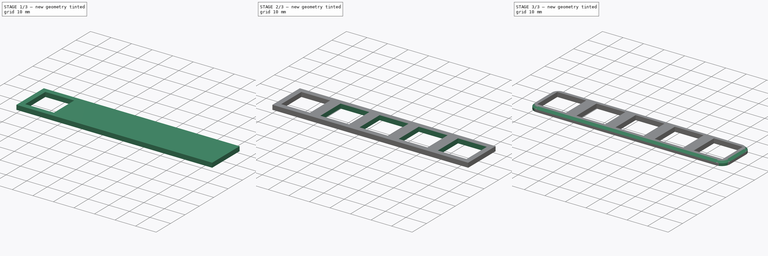
[diagram: build sequence overview — one tinted view per stage of 3, left to right]
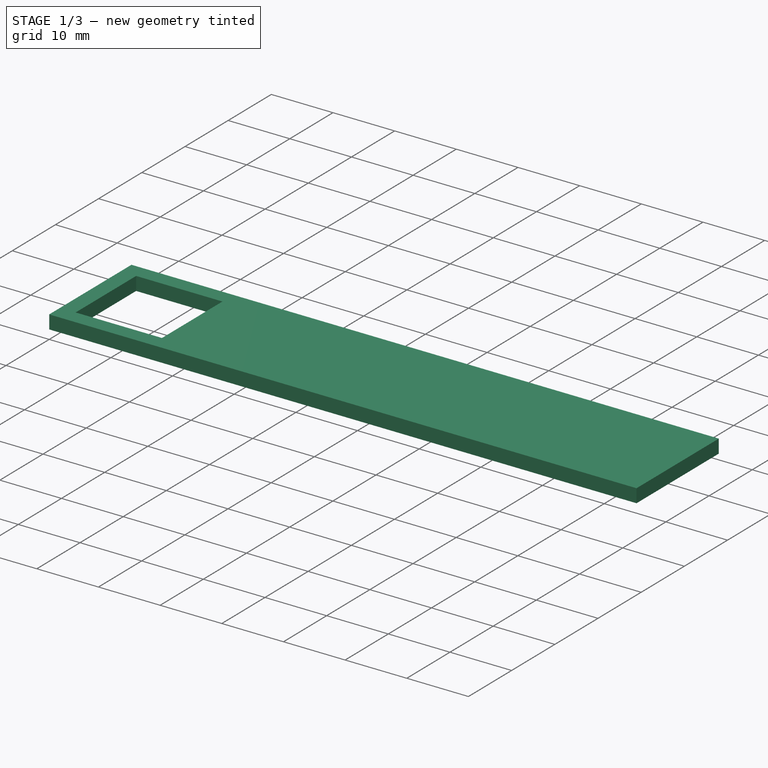
[diagram: stage 1 of 3 — iso view after this stage's code; geometry added in this stage tinted green]
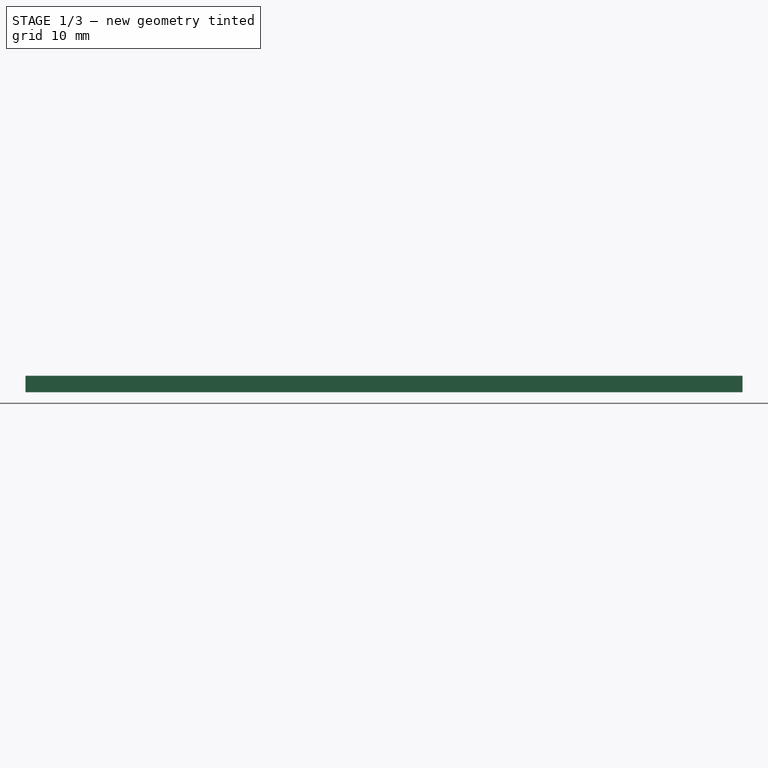
[diagram: stage 1 of 3 — front view after this stage's code; geometry added in this stage tinted green]
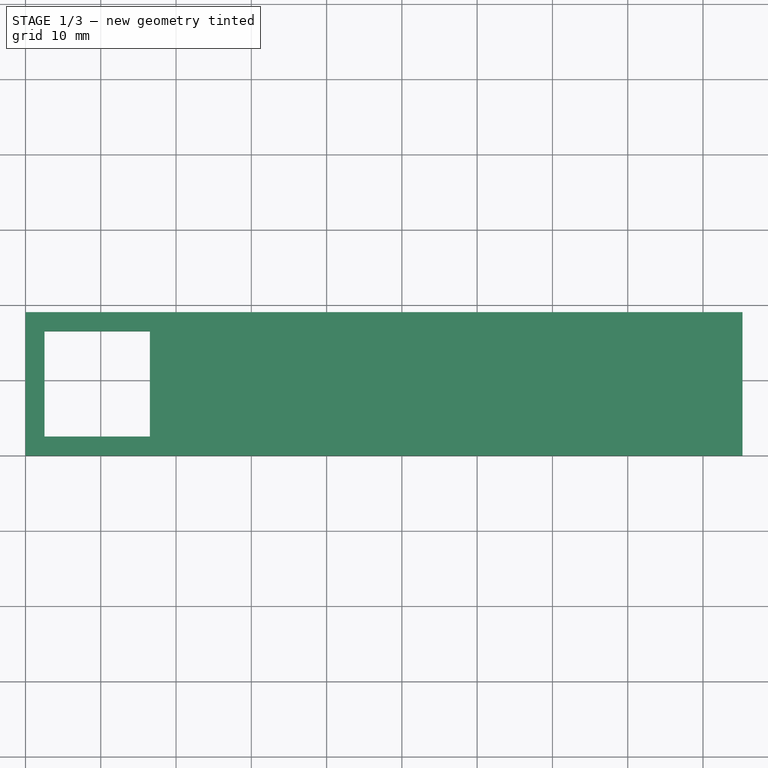
[diagram: stage 1 of 3 — top view after this stage's code; geometry added in this stage tinted green]
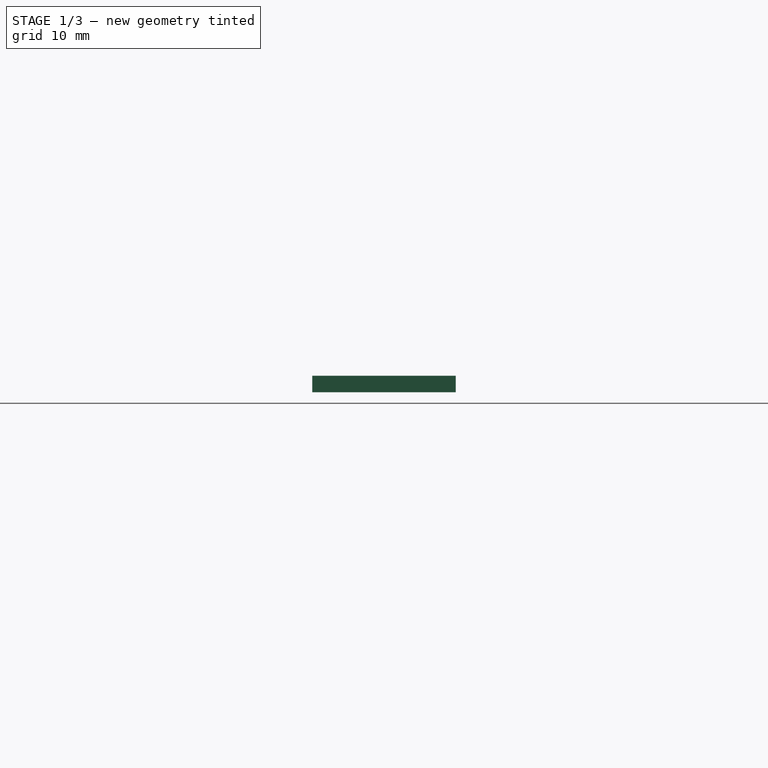
[diagram: stage 1 of 3 — right view after this stage's code; geometry added in this stage tinted green]
FCSTD DOCUMENT  (FreeCAD 0.21R33771 (Git))
Label: LowProPlateXL
License: All rights reserved
LicenseURL: http://en.wikipedia.org/wiki/All_rights_reserved
objects: Sketcher::SketchObject×2, PartDesign::Pocket×2, Part::Part2DObjectPython×2, PartDesign::FeaturePython×2, PartDesign::AdditiveBox×1, PartDesign::Fillet×1, PartDesign::Chamfer×1, PartDesign::Body×1
note: 17 computed .brp shape members not serialized (recipe doc carries the construction recipe); baked Part::Feature solids carry a one-line shape summary decoded from their .brp

FEATURE [PartDesign::AdditiveBox] Box
  AttacherType = Attacher::AttachEngine3D
  Height = 2.2
  Length = 95.25
  Width = 19.05
  expr: Length = 19.05 * 5
FEATURE [Sketcher::SketchObject] Sketch  label="SwitchHoleSketch"
  ExternalGeometry = -> [Box]
  FullyConstrained = true
  MapMode = 5
  Placement = pos=(0,0,2.2) rot=(0,0,1;0rad)
  Support = -> [Box]
  sketch-geometry (7):
    g0: LineSegment StartX=2.525 StartY=16.525 StartZ=0 EndX=16.525 EndY=16.525 EndZ=0
    g1: LineSegment StartX=16.525 StartY=16.525 StartZ=0 EndX=16.525 EndY=2.525 EndZ=0
    g2: LineSegment StartX=16.525 StartY=2.525 StartZ=0 EndX=2.525 EndY=2.525 EndZ=0
    g3: LineSegment StartX=2.525 StartY=2.525 StartZ=0 EndX=2.525 EndY=16.525 EndZ=0
    g4: GeomPoint X=9.525 Y=9.525 Z=0
    g5: LineSegment StartX=9.525 StartY=9.525 StartZ=0 EndX=0 EndY=19.05 EndZ=0
    g6: LineSegment StartX=0 StartY=0 StartZ=0 EndX=9.525 EndY=9.525 EndZ=0
  constraints (17):
    c: Coincident(g0,g1)
    c: Coincident(g1,g2)
    c: Coincident(g2,g3)
    c: Coincident(g3,g0)
    c: Horizontal(g0)
    c: Horizontal(g2)
    c: Vertical(g1)
    c: Vertical(g3)
    c: DistanceX(g0,g0) = 14
    c: Equal(g0,g1)
    c: Symmetric(g2,g0,g4)
    c: Coincident(g5,g4)
    c: Coincident(g5,g-3)
    c: Coincident(g6,g-1)
    c: Coincident(g6,g4)
    c: Equal(g5,g6)
    c: DistanceX(g6,g4) = 9.525
FEATURE [PartDesign::Pocket] Pocket  label="SwitchPocket"
  BaseFeature = -> Box
  Direction = (0,0,-1)
  Length = 5
  Length2 = 5
  Profile = -> Sketch
  ReferenceAxis = -> Sketch [N_Axis]
  Type = 1
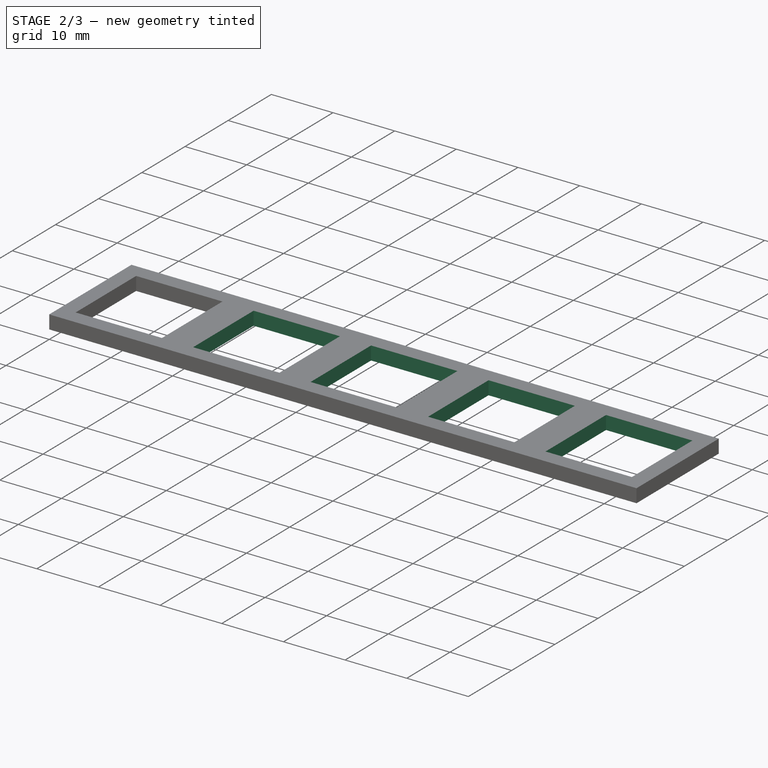
[diagram: stage 2 of 3 — iso view after this stage's code; geometry added in this stage tinted green]
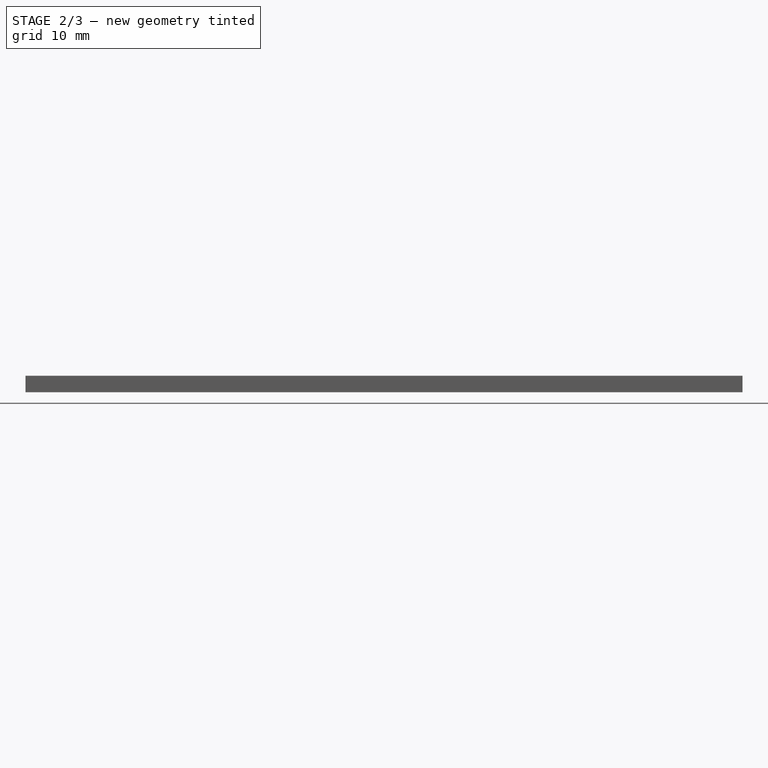
[diagram: stage 2 of 3 — front view after this stage's code; geometry added in this stage tinted green]
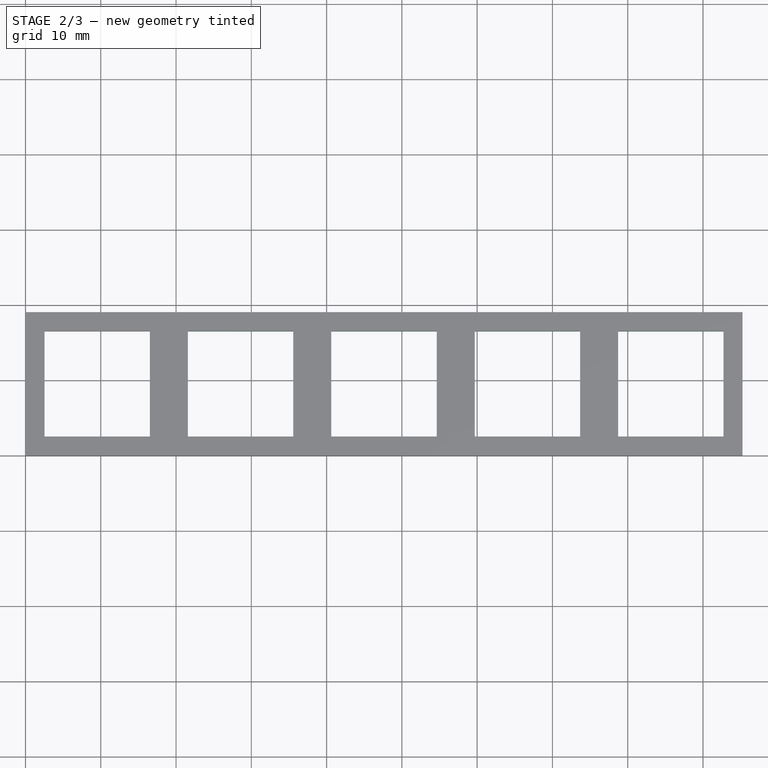
[diagram: stage 2 of 3 — top view after this stage's code; geometry added in this stage tinted green]
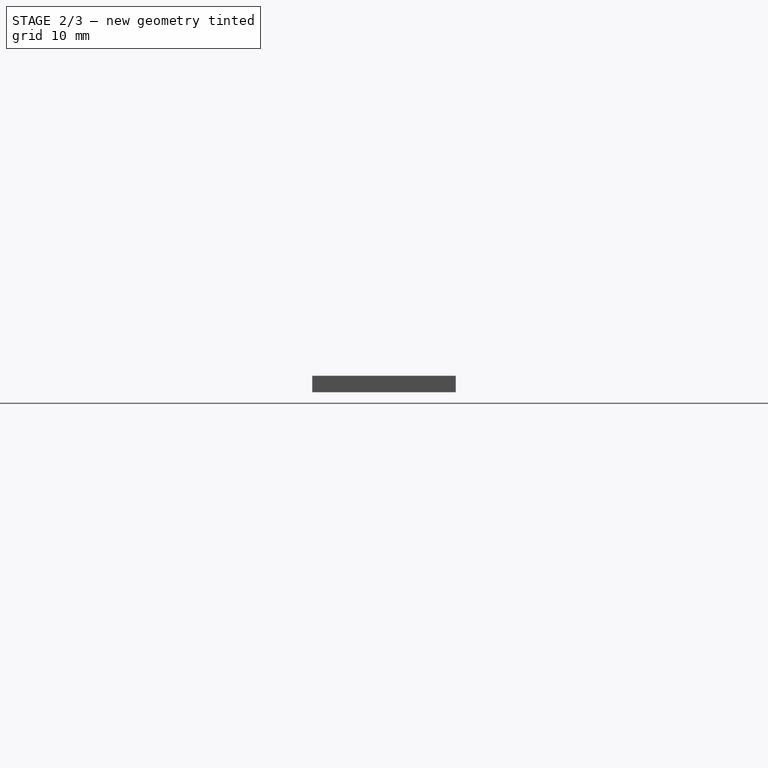
[diagram: stage 2 of 3 — right view after this stage's code; geometry added in this stage tinted green]
FEATURE [Part::Part2DObjectPython] LinearArray  # Draft 2D object (typed FeaturePython)
  Alignment = 0
  AttacherType = Attacher::AttachEngine3D
  CellStart = A1
  Count = 5
  Dir = (1,0,0)
  DirIsDriven = true
  DistributionLaw = 0
  DrivenProperty = 1
  EndInclusive = true
  ExposePlacement = false
  GeneratorMode = 1
  Link = -> Pocket
  LinkSubelement = Edge7
  MarkerShape = 1
  MarkerSize = 0
  NumElements = 5
  OrientMode = 1
  Point = (0,0,2.2)
  PointIsDriven = true
  Reverse = false
  SpanEnd = 95.25
  SpanStart = 0
  Step = 19.05
  SubLink = -> Pocket [Edge7]
  Type = lattice2LinearArray.LinearArray
  VSGVersion = 1
  Values = 0.0 | 19.05 | 38.1 | 57.150000000000006 | 76.2
  ValuesSource = 2
  isLattice = 1
FEATURE [PartDesign::FeaturePython] LatticePattern  # WARN: FeaturePython — macro-defined, semantics opaque (R4)
  BaseFeature = -> Pocket
  FeaturesToCopy = -> [Pocket]
  IgnoreUnsupported = false
  PlacementsTo = -> LinearArray
  Referencing = 1
  Selfintersections = false
  SignOverride = 0
  SkipFirstInBody = false
FEATURE [Sketcher::SketchObject] Sketch001  label="ResistorPocketSketch"
  ExternalGeometry = -> [LatticePattern]
  FullyConstrained = true
  MapMode = 5
  Placement = pos=(0,0,0) rot=(1,0,0;3.14159rad)
  Support = -> [LatticePattern]
  sketch-geometry (5):
    g0: LineSegment StartX=16.525 StartY=-7.025 StartZ=0 EndX=19.05 EndY=-7.025 EndZ=0
    g1: LineSegment StartX=19.05 StartY=-7.025 StartZ=0 EndX=19.05 EndY=-12.025 EndZ=0
    g2: LineSegment StartX=19.05 StartY=-12.025 StartZ=0 EndX=16.525 EndY=-12.025 EndZ=0
    g3: LineSegment StartX=16.525 StartY=-12.025 StartZ=0 EndX=16.525 EndY=-7.025 EndZ=0
    g4: GeomPoint X=19.05 Y=-9.525 Z=0
  constraints (12):
    c: Coincident(g0,g1)
    c: Coincident(g1,g2)
    c: Coincident(g2,g3)
    c: Coincident(g3,g0)
    c: Horizontal(g0)
    c: Horizontal(g2)
    c: Vertical(g1)
    c: Vertical(g3)
    c: DistanceY(g3,g3) = 5
    c: Symmetric(g0,g1,g4)
    c: PointOnObject(g0,g-3)
    c: Symmetric(g-3,g-4,g4)
FEATURE [PartDesign::Pocket] Pocket001  label="ResistorPocket"
  BaseFeature = -> LatticePattern
  Direction = (0,0,1)
  Length = 1
  Length2 = 5
  Profile = -> Sketch001
  ReferenceAxis = -> Sketch001 [N_Axis]
  Type = 0
FEATURE [Part::Part2DObjectPython] LinearArray001  label="ResistorArray"  # Draft 2D object (typed FeaturePython)
  Alignment = 0
  AttacherType = Attacher::AttachEngine3D
  CellStart = A1
  Count = 4
  Dir = (1,0,0)
  DirIsDriven = true
  DistributionLaw = 0
  DrivenProperty = 1
  EndInclusive = true
  ExposePlacement = false
  GeneratorMode = 1
  Link = -> Pocket001
  LinkSubelement = Edge42
  MarkerShape = 1
  MarkerSize = 0
  NumElements = 4
  OrientMode = 1
  Point = (21.575,2.525,0)
  PointIsDriven = true
  Reverse = true
  SpanEnd = 14
  SpanStart = 0
  Step = 19.05
  SubLink = -> Pocket001 [Edge42]
  Type = lattice2LinearArray.LinearArray
  VSGVersion = 1
  Values = 0.0 | 19.05 | 38.1 | 57.150000000000006
  ValuesSource = 2
  isLattice = 1
FEATURE [PartDesign::FeaturePython] LatticePattern001  label="ResistorPockets"  # WARN: FeaturePython — macro-defined, semantics opaque (R4)
  BaseFeature = -> Pocket001
  FeaturesToCopy = -> [Pocket001]
  IgnoreUnsupported = false
  PlacementsTo = -> LinearArray001
  Referencing = 1
  Selfintersections = false
  SignOverride = 0
  SkipFirstInBody = false
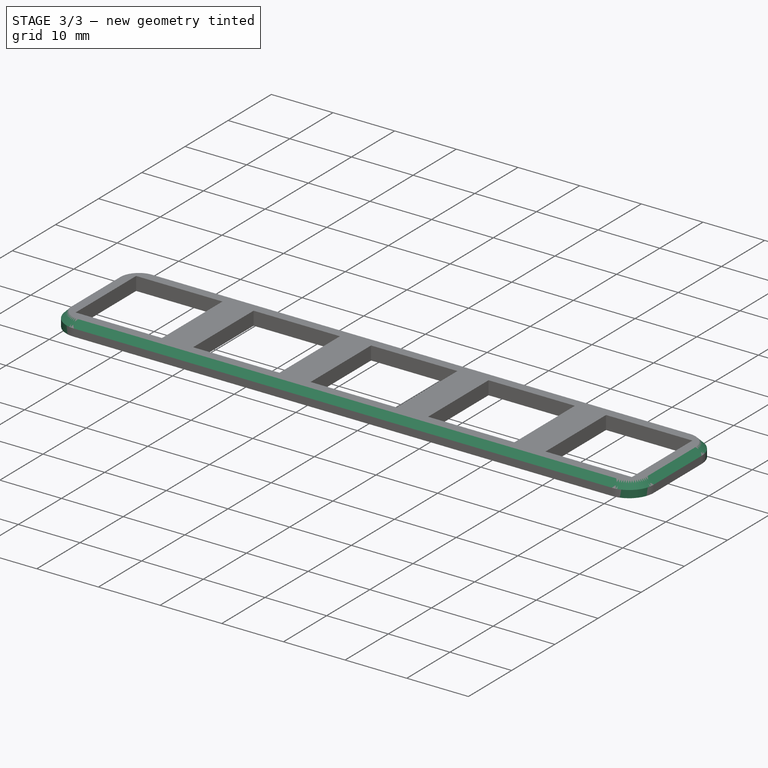
[diagram: stage 3 of 3 — iso view after this stage's code; geometry added in this stage tinted green]
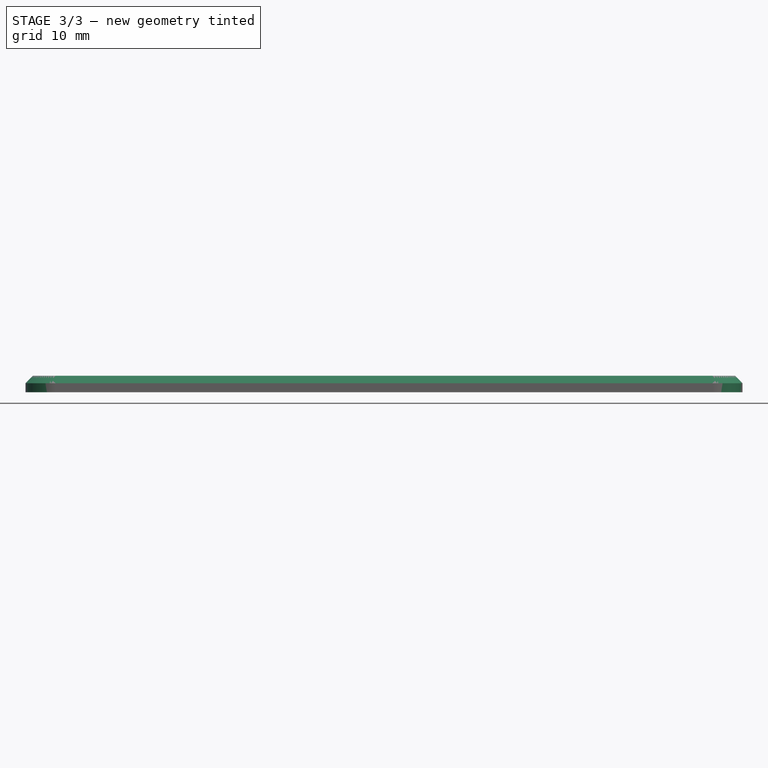
[diagram: stage 3 of 3 — front view after this stage's code; geometry added in this stage tinted green]
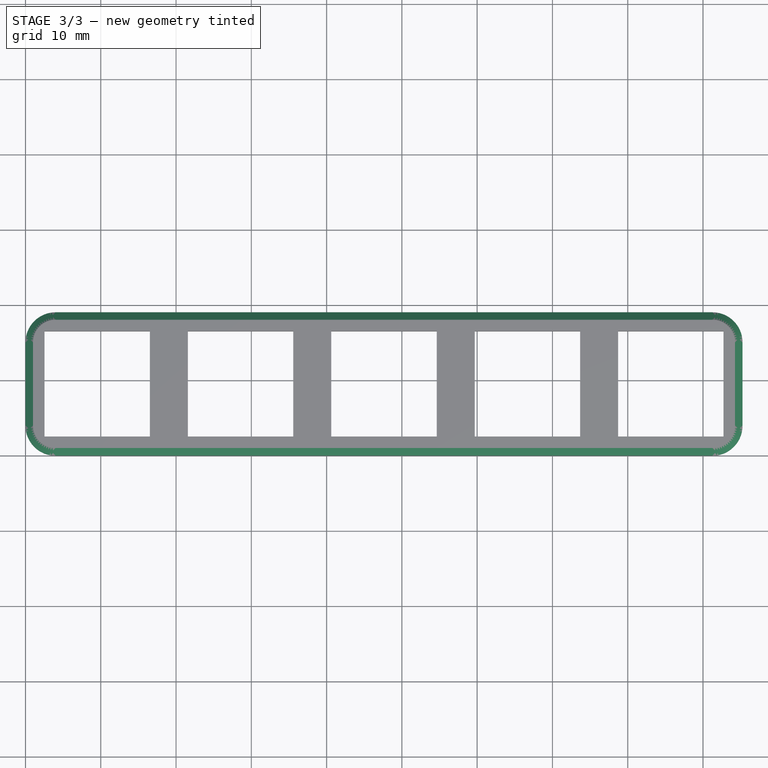
[diagram: stage 3 of 3 — top view after this stage's code; geometry added in this stage tinted green]
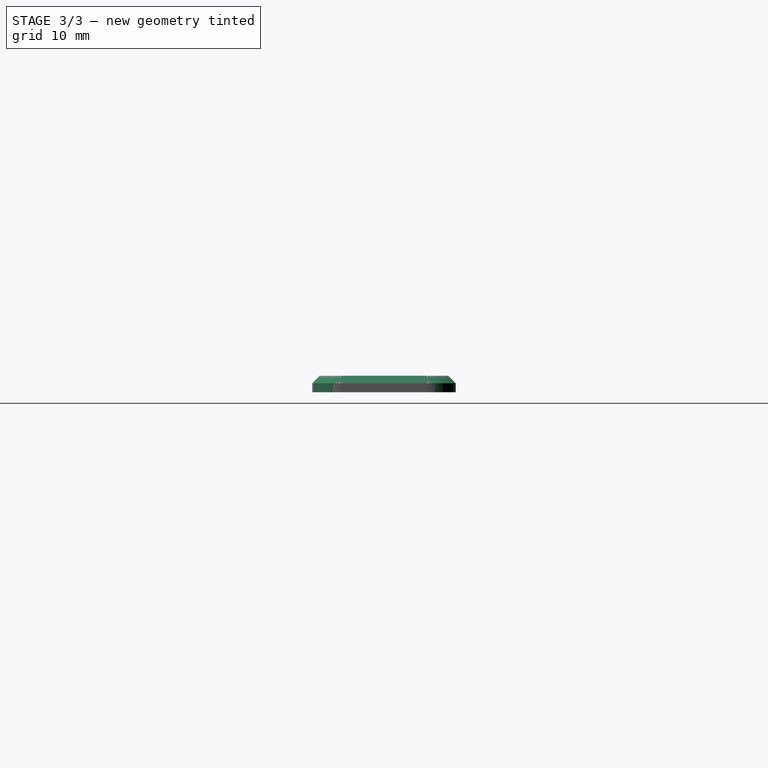
[diagram: stage 3 of 3 — right view after this stage's code; geometry added in this stage tinted green]
FEATURE [PartDesign::Fillet] Fillet
  Base = -> LatticePattern001 [Edge1,Edge6,Edge31,Edge3]
  BaseFeature = -> LatticePattern001
  Radius = 4
  SupportTransform = false
  UseAllEdges = false
FEATURE [PartDesign::Chamfer] Chamfer
  Angle = 45
  Base = -> Fillet [Edge8]
  BaseFeature = -> Fillet
  ChamferType = 0
  FlipDirection = false
  Size = 1
  Size2 = 1
  SupportTransform = false
  UseAllEdges = false
FEATURE [PartDesign::Body] Body  label="LowProPlateXLBody"
  Group = -> [Box,Sketch,Pocket,LinearArray,LatticePattern,Sketch001,Pocket001,LinearArray001,LatticePattern001,Fillet,Chamfer]
  Origin = -> Origin
  Tip = -> Chamfer
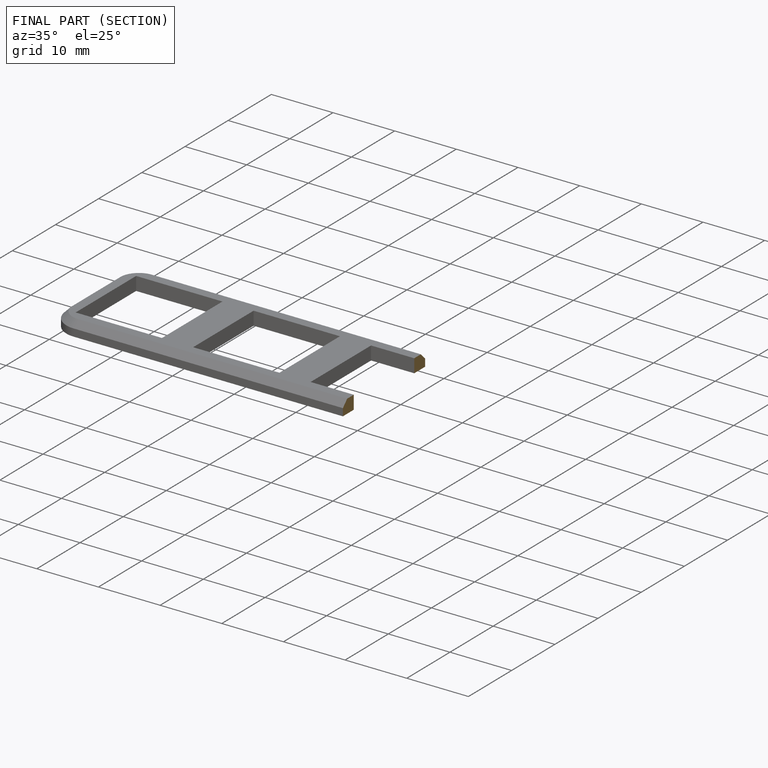
[diagram: finished part — half-section view (interior)]
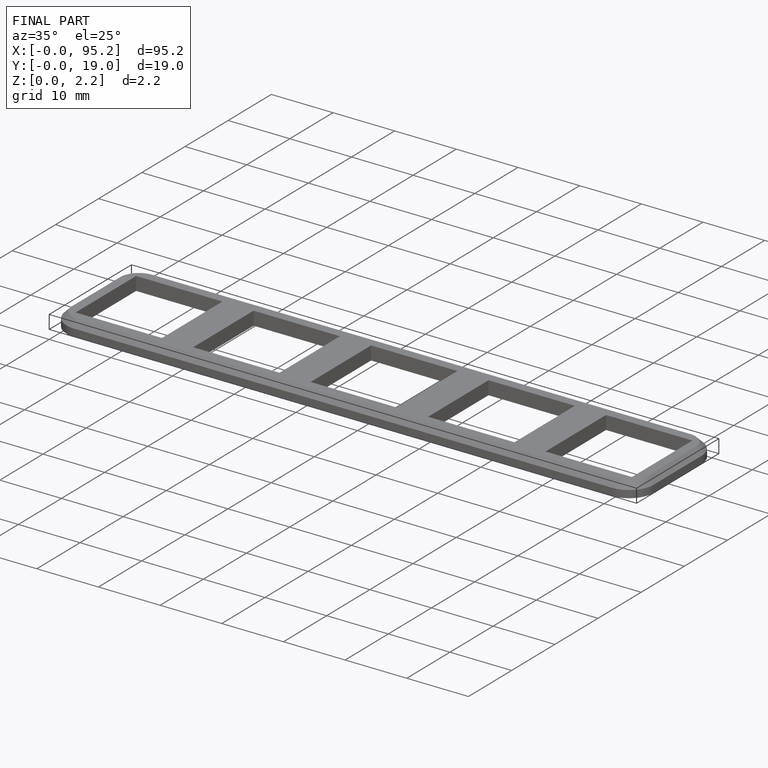
[diagram: finished part — iso view with bounding-box wireframe]
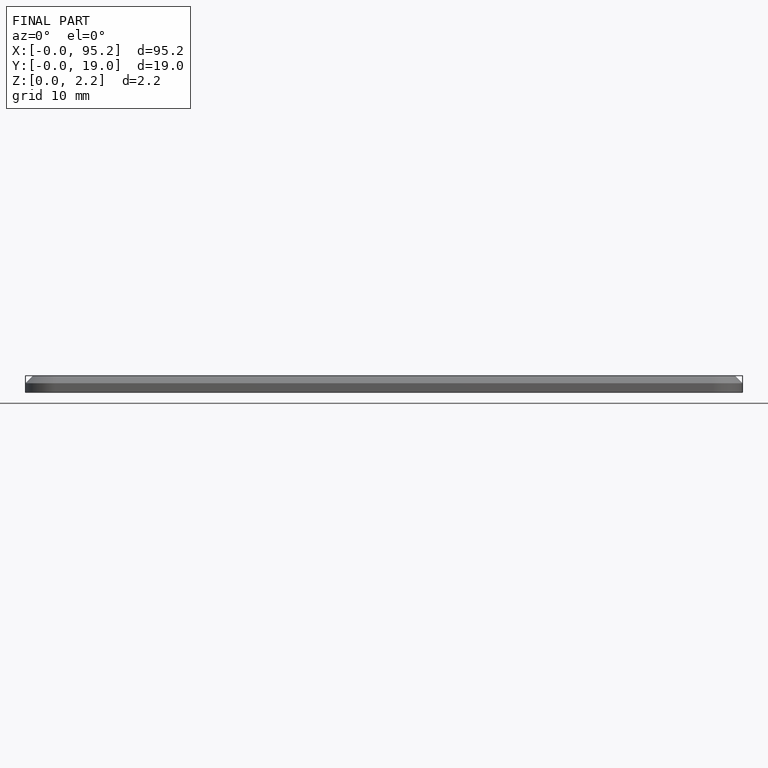
[diagram: finished part — front view with bounding-box wireframe]
